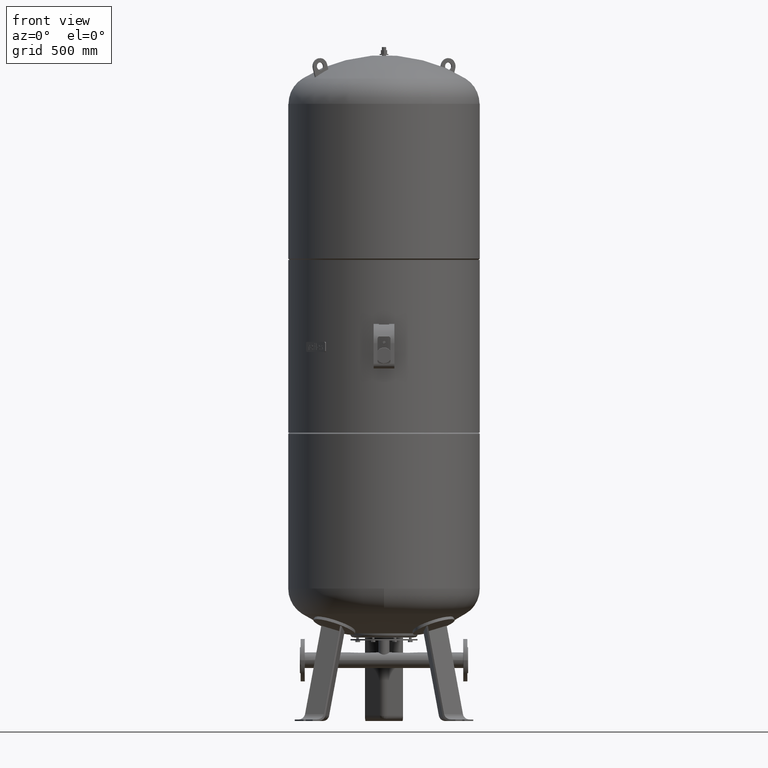
[diagram: clean part render]
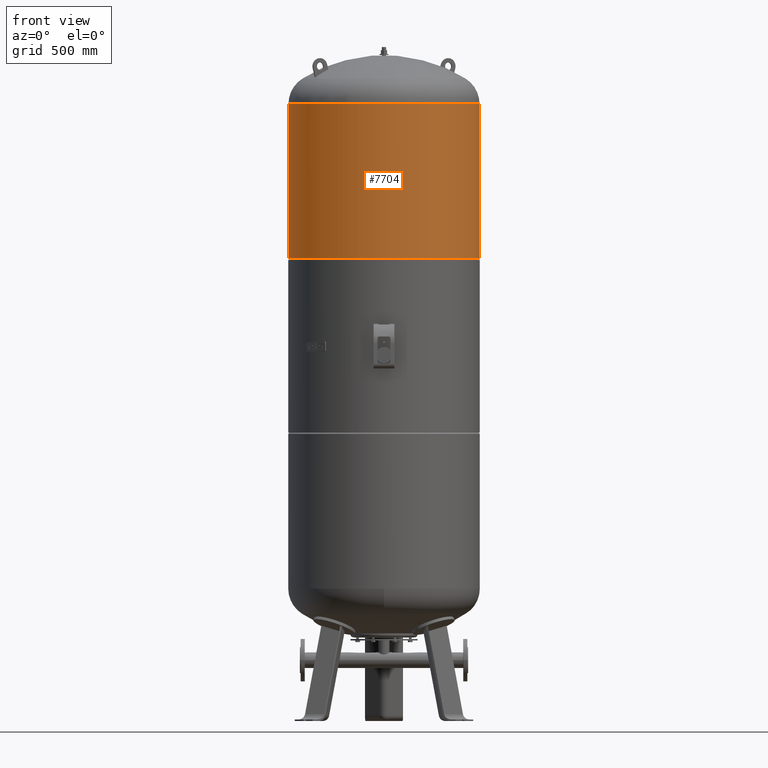
[diagram: same view with one face highlighted and labeled with its STEP entity id]
A machine part, front view. The second image highlights one B-rep face of the part: STEP entity #7704.
In plain terms, the highlighted cylindrical surface (partial cylindrical patch) has radius 370 mm, axis along (0, 0, 1).
Its self-contained STEP definition (entity closure, byte-faithful):
#7552=CARTESIAN_POINT('',(369.999999999999490,0.0,1786.666666666666700));
#7553=VERTEX_POINT('',#7552);
#7562=CARTESIAN_POINT('',(-369.999999999999720,-4.531044E-014,1786.666666666666700));
#7563=VERTEX_POINT('',#7562);
#7564=CARTESIAN_POINT('',(5.646011E-015,0.0,1786.666666666666700));
#7565=DIRECTION('',(0.0,0.0,1.0));
#7566=DIRECTION('',(1.0,0.0,0.0));
#7567=AXIS2_PLACEMENT_3D('',#7564,#7565,#7566);
#7568=CIRCLE('',#7567,369.999999999999490);
#7569=EDGE_CURVE('',#7563,#7553,#7568,.T.);
#7673=CARTESIAN_POINT('',(1.116699E-014,0.0,2117.833333333333500));
#7674=DIRECTION('',(1.667129E-017,0.0,1.0));
#7675=DIRECTION('',(1.0,0.0,0.0));
#7676=AXIS2_PLACEMENT_3D('',#7673,#7674,#7675);
#7677=CYLINDRICAL_SURFACE('',#7676,369.999999999999720);
#7678=CARTESIAN_POINT('',(369.999999999999720,0.0,2384.0));
#7679=VERTEX_POINT('',#7678);
#7680=CARTESIAN_POINT('',(369.999999999999720,0.0,2384.0));
#7681=DIRECTION('',(0.0,0.0,-1.0));
#7682=VECTOR('',#7681,597.333333333333260);
#7683=LINE('',#7680,#7682);
#7684=EDGE_CURVE('',#7679,#7553,#7683,.T.);
#7685=ORIENTED_EDGE('',*,*,#7684,.F.);
#7686=CARTESIAN_POINT('',(-369.999999999999720,-4.531044E-014,2384.0));
#7687=VERTEX_POINT('',#7686);
#7688=CARTESIAN_POINT('',(1.560433E-014,0.0,2384.0));
#7689=DIRECTION('',(0.0,0.0,1.0));
#7690=DIRECTION('',(1.0,0.0,0.0));
#7691=AXIS2_PLACEMENT_3D('',#7688,#7689,#7690);
#7692=CIRCLE('',#7691,369.999999999999720);
#7693=EDGE_CURVE('',#7687,#7679,#7692,.T.);
#7694=ORIENTED_EDGE('',*,*,#7693,.F.);
#7695=CARTESIAN_POINT('',(-369.999999999999720,-4.531044E-014,2384.0));
#7696=DIRECTION('',(0.0,0.0,-1.0));
#7697=VECTOR('',#7696,597.333333333333260);
#7698=LINE('',#7695,#7697);
#7699=EDGE_CURVE('',#7687,#7563,#7698,.T.);
#7700=ORIENTED_EDGE('',*,*,#7699,.T.);
#7701=ORIENTED_EDGE('',*,*,#7569,.T.);
#7702=EDGE_LOOP('',(#7685,#7694,#7700,#7701));
#7703=FACE_OUTER_BOUND('',#7702,.T.);
#7704=ADVANCED_FACE('',(#7703),#7677,.T.);